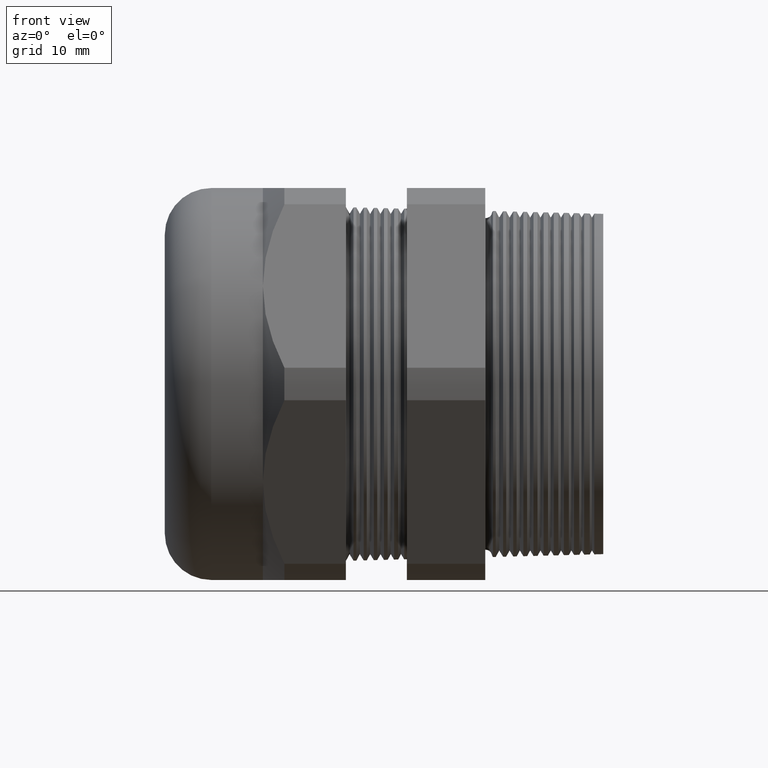
[diagram: clean part render]
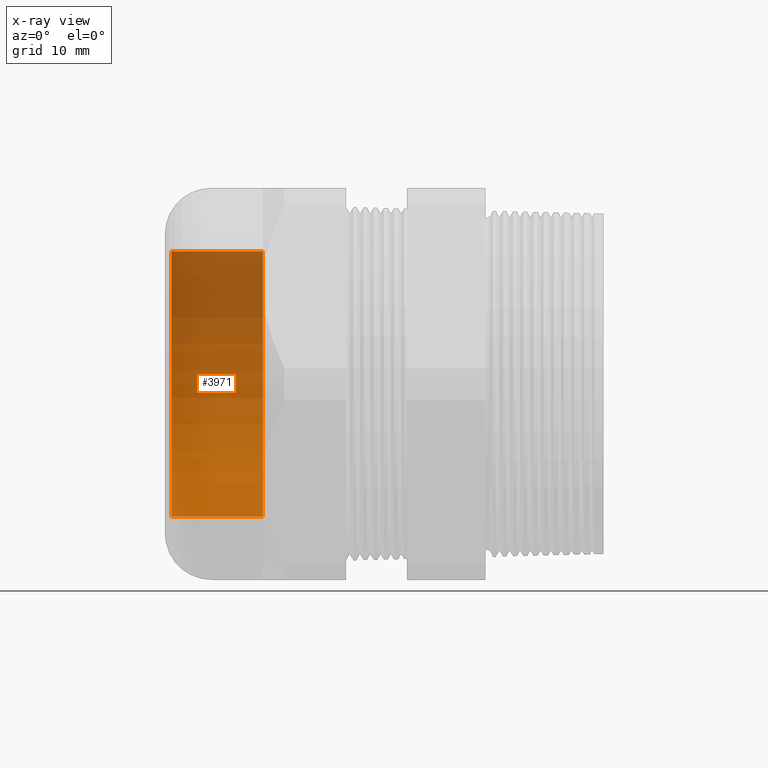
[diagram: x-ray — body ghosted, one internal face saturated and labeled with its STEP entity id]
A machine part, front view, then the same camera in x-ray: the body is ghosted and one INTERNAL B-rep face — a face not visible from any outside direction — is saturated and labeled: STEP entity #3971.
In plain terms, the highlighted cylindrical surface (partial cylindrical patch) has radius 20.2882 mm, axis along (1, 0, 0).
Its self-contained STEP definition (entity closure, byte-faithful):
#2056 = LINE ( 'NONE', #2119, #2118 ) ;
#2057 = CARTESIAN_POINT ( 'NONE',  ( -1.649449999999999200, 0.0000000000000000000, -0.7987499999999997400 ) ) ;
#2058 = DIRECTION ( 'NONE',  ( 0.0000000000000000000, 0.0000000000000000000, -1.000000000000000000 ) ) ;
#2059 = DIRECTION ( 'NONE',  ( 1.000000000000000000, 0.0000000000000000000, 0.0000000000000000000 ) ) ;
#2060 = AXIS2_PLACEMENT_3D ( 'NONE', #2066, #2059, #2058 ) ;
#2061 = CIRCLE ( 'NONE', #2060, 0.7987499999999997400 ) ;
#2066 = CARTESIAN_POINT ( 'NONE',  ( -1.649449999999999200, 0.0000000000000000000, 0.0000000000000000000 ) ) ;
#2069 = CARTESIAN_POINT ( 'NONE',  ( -1.649449999999999200, 9.781866308189481500E-017, 0.7987499999999997400 ) ) ;
#2088 = DIRECTION ( 'NONE',  ( 0.0000000000000000000, 0.0000000000000000000, -1.000000000000000000 ) ) ;
#2089 = DIRECTION ( 'NONE',  ( 1.000000000000000000, 0.0000000000000000000, 0.0000000000000000000 ) ) ;
#2090 = CARTESIAN_POINT ( 'NONE',  ( -2.200999999999999600, 0.0000000000000000000, 0.0000000000000000000 ) ) ;
#2091 = AXIS2_PLACEMENT_3D ( 'NONE', #2090, #2089, #2088 ) ;
#2092 = CIRCLE ( 'NONE', #2091, 0.7987499999999997400 ) ;
#2093 = CARTESIAN_POINT ( 'NONE',  ( -2.200999999999999600, 9.781866308189481500E-017, 0.7987499999999997400 ) ) ;
#2117 = DIRECTION ( 'NONE',  ( 1.000000000000000000, 0.0000000000000000000, 0.0000000000000000000 ) ) ;
#2118 = VECTOR ( 'NONE', #2117, 39.37007874015748100 ) ;
#2119 = CARTESIAN_POINT ( 'NONE',  ( 0.0000000000000000000, 0.0000000000000000000, -0.7987499999999997400 ) ) ;
#2132 = DIRECTION ( 'NONE',  ( 1.000000000000000000, 0.0000000000000000000, 0.0000000000000000000 ) ) ;
#2133 = VECTOR ( 'NONE', #2132, 39.37007874015748100 ) ;
#2134 = CARTESIAN_POINT ( 'NONE',  ( 0.0000000000000000000, 9.781866308189481500E-017, 0.7987499999999997400 ) ) ;
#2135 = LINE ( 'NONE', #2134, #2133 ) ;
#2136 = DIRECTION ( 'NONE',  ( 0.0000000000000000000, 0.0000000000000000000, -1.000000000000000000 ) ) ;
#2137 = DIRECTION ( 'NONE',  ( 1.000000000000000000, 0.0000000000000000000, 0.0000000000000000000 ) ) ;
#2138 = CARTESIAN_POINT ( 'NONE',  ( 0.0000000000000000000, 0.0000000000000000000, 0.0000000000000000000 ) ) ;
#2139 = AXIS2_PLACEMENT_3D ( 'NONE', #2138, #2137, #2136 ) ;
#2140 = CYLINDRICAL_SURFACE ( 'NONE', #2139, 0.7987499999999997400 ) ;
#2141 = FACE_OUTER_BOUND ( 'NONE', #3972, .T. ) ;
#2147 = CARTESIAN_POINT ( 'NONE',  ( -2.200999999999999600, 0.0000000000000000000, -0.7987499999999997400 ) ) ;
#3947 = VERTEX_POINT ( 'NONE', #2069 ) ;
#3948 = ORIENTED_EDGE ( 'NONE', *, *, #3950, .F. ) ;
#3950 = EDGE_CURVE ( 'NONE', #3951, #3947, #2061, .T. ) ;
#3951 = VERTEX_POINT ( 'NONE', #2057 ) ;
#3952 = ORIENTED_EDGE ( 'NONE', *, *, #3953, .F. ) ;
#3953 = EDGE_CURVE ( 'NONE', #3968, #3951, #2056, .T. ) ;
#3965 = VERTEX_POINT ( 'NONE', #2093 ) ;
#3967 = EDGE_CURVE ( 'NONE', #3968, #3965, #2092, .T. ) ;
#3968 = VERTEX_POINT ( 'NONE', #2147 ) ;
#3971 = ADVANCED_FACE ( 'NONE', ( #2141 ), #2140, .T. ) ;
#3972 = EDGE_LOOP ( 'NONE', ( #3973, #3974, #3948, #3952 ) ) ;
#3973 = ORIENTED_EDGE ( 'NONE', *, *, #3967, .T. ) ;
#3974 = ORIENTED_EDGE ( 'NONE', *, *, #3975, .T. ) ;
#3975 = EDGE_CURVE ( 'NONE', #3965, #3947, #2135, .T. ) ;